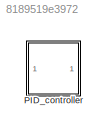
MODEL slx_8189519e3972
KIND library
CONFIG AbsTol = auto
CONFIG EnableMultiTasking = off
CONFIG FixedStep = auto
CONFIG MaxStep = auto
CONFIG MinStep = auto
CONFIG RelTol = 1e-3
CONFIG SampleTimeConstraint = Unconstrained
CONFIG SolverName = VariableStepAuto
CONFIG StartTime = 0.0
CONFIG StopTime = 10.0
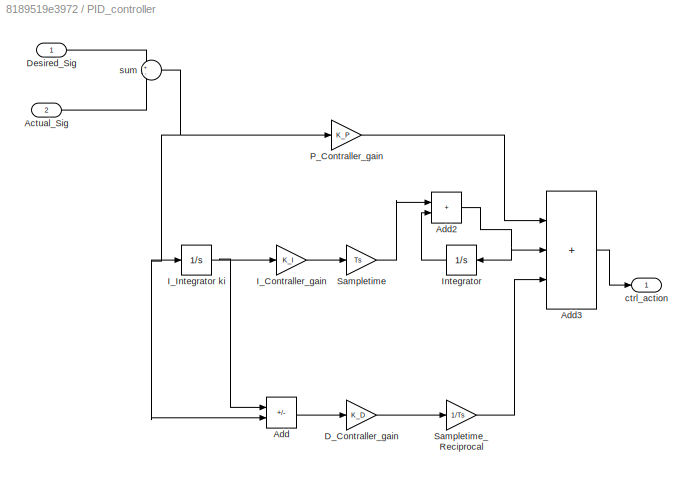
BLOCK [SubSystem] PID_controller
BLOCK [Inport] PID_controller/Actual_Sig
  Port = 2
BLOCK [Sum] PID_controller/Add
  IconShape = rectangular
  Inputs = -+
BLOCK [Sum] PID_controller/Add2
  IconShape = rectangular
BLOCK [Sum] PID_controller/Add3
  IconShape = rectangular
  Inputs = +++
BLOCK [Gain] PID_controller/D_Contraller_gain
  Gain = K_D
BLOCK [Inport] PID_controller/Desired_Sig
BLOCK [Gain] PID_controller/I_Contraller_gain
  Gain = K_I
BLOCK [Integrator] PID_controller/I_Integrator ki
BLOCK [Integrator] PID_controller/Integrator
BLOCK [Gain] PID_controller/P_Contraller_gain
  Gain = K_P
BLOCK [Gain] PID_controller/Sampletime
  Gain = Ts
BLOCK [Gain] PID_controller/Sampletime_Reciprocal
  Gain = 1/Ts
BLOCK [Outport] PID_controller/ctrl_action
BLOCK [Sum] PID_controller/sum
  Inputs = +-
LINE PID_controller/Actual_Sig:1 -> PID_controller/sum:2
NET PID_controller/Add2:1 -> PID_controller/Add3:2, PID_controller/Integrator:1
LINE PID_controller/Add3:1 -> PID_controller/ctrl_action:1
LINE PID_controller/Add:1 -> PID_controller/D_Contraller_gain:1
LINE PID_controller/D_Contraller_gain:1 -> PID_controller/Sampletime_Reciprocal:1
LINE PID_controller/Desired_Sig:1 -> PID_controller/sum:1
LINE PID_controller/I_Contraller_gain:1 -> PID_controller/Sampletime:1
NET PID_controller/I_Integrator ki:1 -> PID_controller/Add:1, PID_controller/I_Contraller_gain:1
LINE PID_controller/Integrator:1 -> PID_controller/Add2:2
LINE PID_controller/P_Contraller_gain:1 -> PID_controller/Add3:1
LINE PID_controller/Sampletime:1 -> PID_controller/Add2:1
LINE PID_controller/Sampletime_Reciprocal:1 -> PID_controller/Add3:3
NET PID_controller/sum:1 -> PID_controller/Add:2, PID_controller/I_Integrator ki:1, PID_controller/P_Contraller_gain:1
note: NET lines group one-source signal fan-out (src -> all destinations, sorted); 1:1 wires keep LINE
